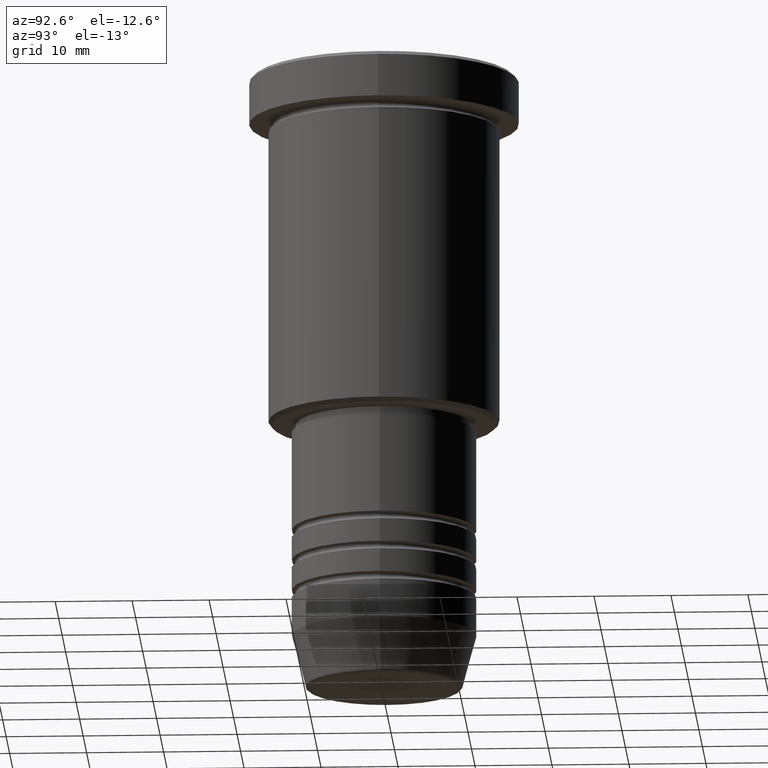
[diagram: clean part render]
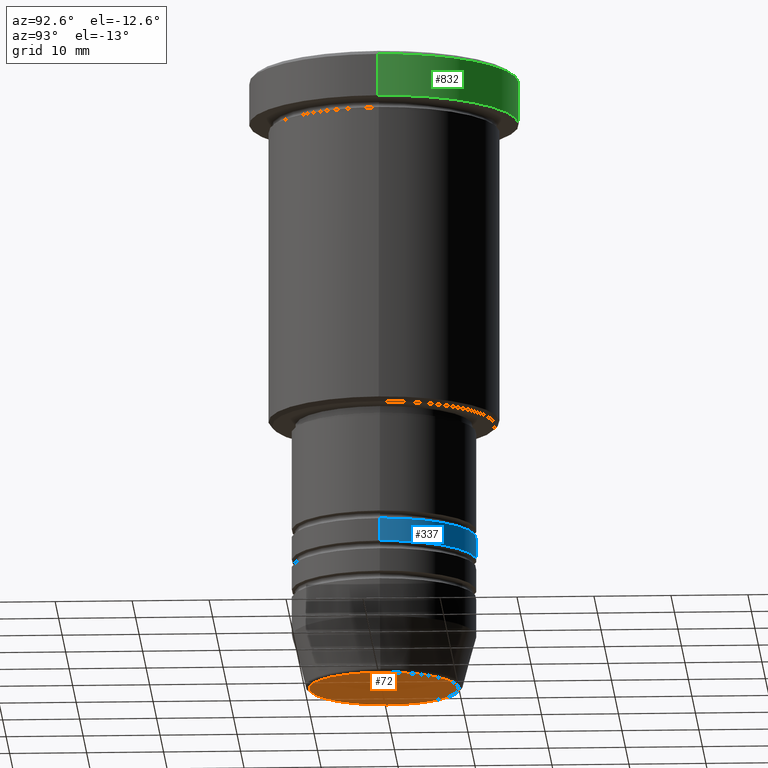
[diagram: same view with three faces highlighted in distinct colors, each labeled with its STEP entity id]
A machine part, auxiliary view with three faces highlighted in distinct colors.
Their STEP definitions:

[orange] entity #72 — the highlighted planar face has unit normal (0, -0, 1).
#4 = ORIENTED_EDGE ( 'NONE', *, *, #266, .T. ) ;
#43 = AXIS2_PLACEMENT_3D ( 'NONE', #1059, #534, #538 ) ;
#72 = ADVANCED_FACE ( 'NONE', ( #977 ), #413, .F. ) ;
#113 = VERTEX_POINT ( 'NONE', #126 ) ;
#126 = CARTESIAN_POINT ( 'NONE',  ( -9.740692158992654726, 1.222463696683474210E-15, -81.00000000000001421 ) ) ;
#135 = DIRECTION ( 'NONE',  ( 1.000000000000000000, 0.000000000000000000, 0.000000000000000000 ) ) ;
#167 = VERTEX_POINT ( 'NONE', #879 ) ;
#229 = DIRECTION ( 'NONE',  ( 0.000000000000000000, -0.000000000000000000, 1.000000000000000000 ) ) ;
#266 = EDGE_CURVE ( 'NONE', #167, #113, #563, .T. ) ;
#413 = PLANE ( 'NONE',  #461 ) ;
#449 = CIRCLE ( 'NONE', #521, 9.740692158992654726 ) ;
#461 = AXIS2_PLACEMENT_3D ( 'NONE', #675, #229, #135 ) ;
#474 = EDGE_CURVE ( 'NONE', #113, #167, #449, .T. ) ;
#521 = AXIS2_PLACEMENT_3D ( 'NONE', #663, #917, #1024 ) ;
#534 = DIRECTION ( 'NONE',  ( 0.000000000000000000, 0.000000000000000000, -1.000000000000000000 ) ) ;
#538 = DIRECTION ( 'NONE',  ( 1.000000000000000000, 0.000000000000000000, 0.000000000000000000 ) ) ;
#563 = CIRCLE ( 'NONE', #43, 9.740692158992654726 ) ;
#604 = EDGE_LOOP ( 'NONE', ( #4, #668 ) ) ;
#663 = CARTESIAN_POINT ( 'NONE',  ( 0.000000000000000000, 0.000000000000000000, -81.00000000000001421 ) ) ;
#668 = ORIENTED_EDGE ( 'NONE', *, *, #474, .T. ) ;
#675 = CARTESIAN_POINT ( 'NONE',  ( 0.000000000000000000, 0.000000000000000000, -81.00000000000001421 ) ) ;
#879 = CARTESIAN_POINT ( 'NONE',  ( 9.740692158992654726, 0.000000000000000000, -81.00000000000001421 ) ) ;
#917 = DIRECTION ( 'NONE',  ( 0.000000000000000000, 0.000000000000000000, -1.000000000000000000 ) ) ;
#977 = FACE_OUTER_BOUND ( 'NONE', #604, .T. ) ;
#1024 = DIRECTION ( 'NONE',  ( 1.000000000000000000, 0.000000000000000000, 0.000000000000000000 ) ) ;
#1059 = CARTESIAN_POINT ( 'NONE',  ( 0.000000000000000000, 0.000000000000000000, -81.00000000000001421 ) ) ;

[blue] entity #337 — the highlighted cylindrical surface (partial cylindrical patch) has radius 12 mm, axis along (-0, -0, 1).
#15 = EDGE_CURVE ( 'NONE', #721, #742, #250, .T. ) ;
#41 = VECTOR ( 'NONE', #601, 1000.000000000000000 ) ;
#119 = CIRCLE ( 'NONE', #296, 12.00000000000000355 ) ;
#149 = DIRECTION ( 'NONE',  ( -0.000000000000000000, -0.000000000000000000, 1.000000000000000000 ) ) ;
#171 = CARTESIAN_POINT ( 'NONE',  ( -12.00000000000000000, 1.469576158976824144E-15, -60.99999999999990052 ) ) ;
#186 = EDGE_LOOP ( 'NONE', ( #367, #1164, #1170, #813 ) ) ;
#190 = DIRECTION ( 'NONE',  ( 1.000000000000000000, 0.000000000000000000, 0.000000000000000000 ) ) ;
#250 = LINE ( 'NONE', #509, #41 ) ;
#255 = CYLINDRICAL_SURFACE ( 'NONE', #1101, 12.00000000000000178 ) ;
#264 = CARTESIAN_POINT ( 'NONE',  ( 12.00000000000000178, 0.000000000000000000, 0.000000000000000000 ) ) ;
#290 = CARTESIAN_POINT ( 'NONE',  ( 12.00000000000000355, 0.000000000000000000, -63.99999999999991473 ) ) ;
#296 = AXIS2_PLACEMENT_3D ( 'NONE', #468, #1106, #190 ) ;
#307 = EDGE_CURVE ( 'NONE', #856, #742, #966, .T. ) ;
#337 = ADVANCED_FACE ( 'NONE', ( #706 ), #255, .T. ) ;
#356 = LINE ( 'NONE', #264, #1085 ) ;
#367 = ORIENTED_EDGE ( 'NONE', *, *, #444, .T. ) ;
#440 = VERTEX_POINT ( 'NONE', #290 ) ;
#444 = EDGE_CURVE ( 'NONE', #440, #721, #119, .T. ) ;
#468 = CARTESIAN_POINT ( 'NONE',  ( 0.000000000000000000, 0.000000000000000000, -63.99999999999991473 ) ) ;
#476 = CARTESIAN_POINT ( 'NONE',  ( 12.00000000000000000, 0.000000000000000000, -60.99999999999990052 ) ) ;
#509 = CARTESIAN_POINT ( 'NONE',  ( -12.00000000000000178, 1.469576158976824144E-15, 0.000000000000000000 ) ) ;
#535 = DIRECTION ( 'NONE',  ( -0.000000000000000000, -0.000000000000000000, 1.000000000000000000 ) ) ;
#601 = DIRECTION ( 'NONE',  ( -0.000000000000000000, -0.000000000000000000, 1.000000000000000000 ) ) ;
#619 = DIRECTION ( 'NONE',  ( 1.000000000000000000, 0.000000000000000000, 0.000000000000000000 ) ) ;
#629 = CARTESIAN_POINT ( 'NONE',  ( 0.000000000000000000, 0.000000000000000000, 0.000000000000000000 ) ) ;
#703 = CARTESIAN_POINT ( 'NONE',  ( -12.00000000000000533, 1.469576158976824539E-15, -63.99999999999991473 ) ) ;
#706 = FACE_OUTER_BOUND ( 'NONE', #186, .T. ) ;
#721 = VERTEX_POINT ( 'NONE', #703 ) ;
#742 = VERTEX_POINT ( 'NONE', #171 ) ;
#813 = ORIENTED_EDGE ( 'NONE', *, *, #1172, .F. ) ;
#856 = VERTEX_POINT ( 'NONE', #476 ) ;
#966 = CIRCLE ( 'NONE', #1040, 12.00000000000000000 ) ;
#999 = DIRECTION ( 'NONE',  ( 1.000000000000000000, 0.000000000000000000, 0.000000000000000000 ) ) ;
#1040 = AXIS2_PLACEMENT_3D ( 'NONE', #1174, #1151, #999 ) ;
#1085 = VECTOR ( 'NONE', #535, 1000.000000000000000 ) ;
#1101 = AXIS2_PLACEMENT_3D ( 'NONE', #629, #149, #619 ) ;
#1106 = DIRECTION ( 'NONE',  ( -0.000000000000000000, -0.000000000000000000, 1.000000000000000000 ) ) ;
#1151 = DIRECTION ( 'NONE',  ( -0.000000000000000000, -0.000000000000000000, 1.000000000000000000 ) ) ;
#1164 = ORIENTED_EDGE ( 'NONE', *, *, #15, .T. ) ;
#1170 = ORIENTED_EDGE ( 'NONE', *, *, #307, .F. ) ;
#1172 = EDGE_CURVE ( 'NONE', #440, #856, #356, .T. ) ;
#1174 = CARTESIAN_POINT ( 'NONE',  ( 0.000000000000000000, 0.000000000000000000, -60.99999999999990052 ) ) ;

[green] entity #832 — the highlighted cylindrical surface (partial cylindrical patch) has radius 17.5 mm, axis along (-0, -0, 1).
#17 = FACE_OUTER_BOUND ( 'NONE', #1022, .T. ) ;
#40 = VERTEX_POINT ( 'NONE', #332 ) ;
#65 = AXIS2_PLACEMENT_3D ( 'NONE', #1065, #626, #533 ) ;
#87 = VECTOR ( 'NONE', #1146, 1000.000000000000000 ) ;
#103 = AXIS2_PLACEMENT_3D ( 'NONE', #631, #363, #728 ) ;
#160 = AXIS2_PLACEMENT_3D ( 'NONE', #400, #769, #725 ) ;
#162 = VECTOR ( 'NONE', #467, 1000.000000000000000 ) ;
#169 = CARTESIAN_POINT ( 'NONE',  ( 17.50000000000000000, 0.000000000000000000, -0.5000000000000142109 ) ) ;
#193 = CARTESIAN_POINT ( 'NONE',  ( -17.50000000000000000, 2.143131898507868248E-15, 0.000000000000000000 ) ) ;
#215 = EDGE_CURVE ( 'NONE', #770, #218, #679, .T. ) ;
#218 = VERTEX_POINT ( 'NONE', #169 ) ;
#329 = ORIENTED_EDGE ( 'NONE', *, *, #215, .T. ) ;
#332 = CARTESIAN_POINT ( 'NONE',  ( 17.50000000000000000, 0.000000000000000000, -5.999999999999995559 ) ) ;
#339 = CIRCLE ( 'NONE', #65, 17.50000000000000000 ) ;
#363 = DIRECTION ( 'NONE',  ( -0.000000000000000000, -0.000000000000000000, 1.000000000000000000 ) ) ;
#400 = CARTESIAN_POINT ( 'NONE',  ( 0.000000000000000000, 0.000000000000000000, -0.5000000000000142109 ) ) ;
#467 = DIRECTION ( 'NONE',  ( -0.000000000000000000, -0.000000000000000000, 1.000000000000000000 ) ) ;
#477 = ORIENTED_EDGE ( 'NONE', *, *, #727, .T. ) ;
#533 = DIRECTION ( 'NONE',  ( 1.000000000000000000, 0.000000000000000000, 0.000000000000000000 ) ) ;
#583 = EDGE_CURVE ( 'NONE', #40, #218, #673, .T. ) ;
#626 = DIRECTION ( 'NONE',  ( -0.000000000000000000, -0.000000000000000000, 1.000000000000000000 ) ) ;
#631 = CARTESIAN_POINT ( 'NONE',  ( 0.000000000000000000, 0.000000000000000000, 0.000000000000000000 ) ) ;
#673 = LINE ( 'NONE', #1140, #87 ) ;
#679 = CIRCLE ( 'NONE', #160, 17.50000000000000000 ) ;
#725 = DIRECTION ( 'NONE',  ( 1.000000000000000000, 0.000000000000000000, 0.000000000000000000 ) ) ;
#727 = EDGE_CURVE ( 'NONE', #40, #1056, #339, .T. ) ;
#728 = DIRECTION ( 'NONE',  ( 1.000000000000000000, 0.000000000000000000, 0.000000000000000000 ) ) ;
#769 = DIRECTION ( 'NONE',  ( 0.000000000000000000, 0.000000000000000000, -1.000000000000000000 ) ) ;
#770 = VERTEX_POINT ( 'NONE', #1009 ) ;
#815 = EDGE_CURVE ( 'NONE', #1056, #770, #1014, .T. ) ;
#832 = ADVANCED_FACE ( 'NONE', ( #17 ), #1115, .T. ) ;
#843 = ORIENTED_EDGE ( 'NONE', *, *, #815, .T. ) ;
#1009 = CARTESIAN_POINT ( 'NONE',  ( -17.50000000000000000, 2.143131898507868248E-15, -0.5000000000000142109 ) ) ;
#1014 = LINE ( 'NONE', #193, #162 ) ;
#1022 = EDGE_LOOP ( 'NONE', ( #477, #843, #329, #1103 ) ) ;
#1056 = VERTEX_POINT ( 'NONE', #1070 ) ;
#1065 = CARTESIAN_POINT ( 'NONE',  ( 0.000000000000000000, 0.000000000000000000, -5.999999999999995559 ) ) ;
#1070 = CARTESIAN_POINT ( 'NONE',  ( -17.50000000000000000, 2.143131898507868248E-15, -5.999999999999995559 ) ) ;
#1103 = ORIENTED_EDGE ( 'NONE', *, *, #583, .F. ) ;
#1115 = CYLINDRICAL_SURFACE ( 'NONE', #103, 17.50000000000000000 ) ;
#1140 = CARTESIAN_POINT ( 'NONE',  ( 17.50000000000000000, 0.000000000000000000, 0.000000000000000000 ) ) ;
#1146 = DIRECTION ( 'NONE',  ( -0.000000000000000000, -0.000000000000000000, 1.000000000000000000 ) ) ;